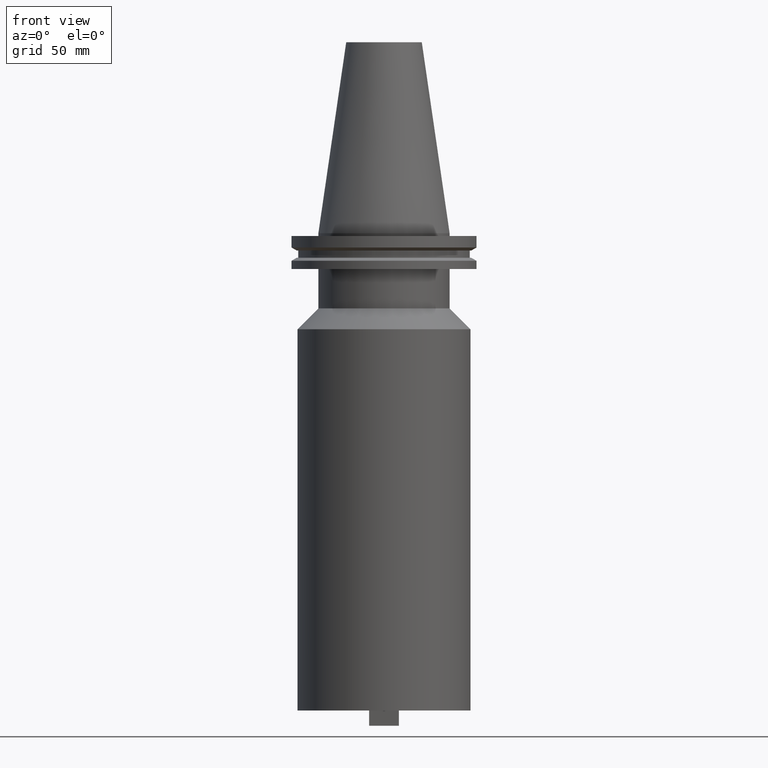
[diagram: clean part render]
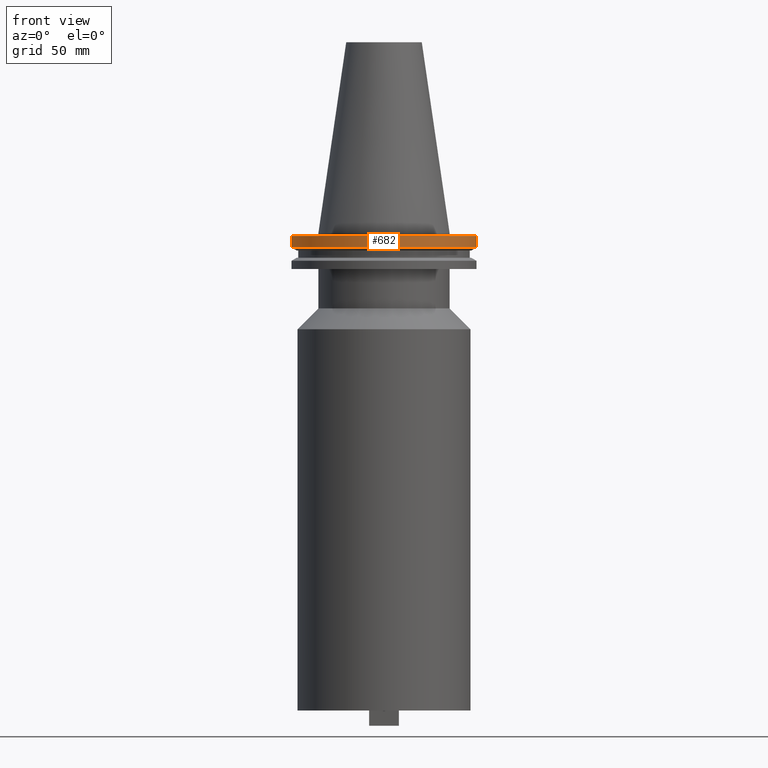
[diagram: same view with one face highlighted and labeled with its STEP entity id]
A machine part, front view. The second image highlights one B-rep face of the part: STEP entity #682.
In plain terms, the highlighted cylindrical surface (partial cylindrical patch) has radius 49.215 mm, axis along (-0, -0, 1).
Its self-contained STEP definition (entity closure, byte-faithful):
#2 = VERTEX_POINT ( 'NONE', #782 ) ;
#10 = CIRCLE ( 'NONE', #158, 49.21499999999999631 ) ;
#16 = EDGE_CURVE ( 'NONE', #539, #455, #609, .T. ) ;
#38 = EDGE_CURVE ( 'NONE', #2, #455, #10, .T. ) ;
#68 = AXIS2_PLACEMENT_3D ( 'NONE', #465, #313, #913 ) ;
#103 = LINE ( 'NONE', #938, #236 ) ;
#158 = AXIS2_PLACEMENT_3D ( 'NONE', #872, #1033, #368 ) ;
#177 = CARTESIAN_POINT ( 'NONE',  ( 49.21499999999999631, 0.000000000000000000, 101.5999999999999943 ) ) ;
#185 = CARTESIAN_POINT ( 'NONE',  ( -49.21500000000000341, 6.027099222003699404E-15, -7.602389855251287187 ) ) ;
#228 = DIRECTION ( 'NONE',  ( 1.000000000000000000, 0.000000000000000000, 0.000000000000000000 ) ) ;
#234 = CYLINDRICAL_SURFACE ( 'NONE', #1088, 49.21499999999999631 ) ;
#236 = VECTOR ( 'NONE', #1101, 1000.000000000000000 ) ;
#249 = ORIENTED_EDGE ( 'NONE', *, *, #16, .T. ) ;
#313 = DIRECTION ( 'NONE',  ( -0.000000000000000000, -0.000000000000000000, 1.000000000000000000 ) ) ;
#348 = EDGE_CURVE ( 'NONE', #1003, #2, #103, .T. ) ;
#364 = CARTESIAN_POINT ( 'NONE',  ( 49.21499999999999631, 0.000000000000000000, -1.499999999999987566 ) ) ;
#368 = DIRECTION ( 'NONE',  ( 1.000000000000000000, 0.000000000000000000, 0.000000000000000000 ) ) ;
#426 = VECTOR ( 'NONE', #968, 1000.000000000000000 ) ;
#455 = VERTEX_POINT ( 'NONE', #364 ) ;
#465 = CARTESIAN_POINT ( 'NONE',  ( 0.000000000000000000, 0.000000000000000000, -7.602389855251287187 ) ) ;
#477 = CARTESIAN_POINT ( 'NONE',  ( 0.000000000000000000, 0.000000000000000000, 101.5999999999999943 ) ) ;
#539 = VERTEX_POINT ( 'NONE', #583 ) ;
#554 = DIRECTION ( 'NONE',  ( -0.000000000000000000, -0.000000000000000000, 1.000000000000000000 ) ) ;
#583 = CARTESIAN_POINT ( 'NONE',  ( 49.21500000000000341, 0.000000000000000000, -7.602389855251287187 ) ) ;
#605 = ORIENTED_EDGE ( 'NONE', *, *, #749, .T. ) ;
#609 = LINE ( 'NONE', #177, #426 ) ;
#682 = ADVANCED_FACE ( 'NONE', ( #1074 ), #234, .T. ) ;
#749 = EDGE_CURVE ( 'NONE', #1003, #539, #1037, .T. ) ;
#782 = CARTESIAN_POINT ( 'NONE',  ( -49.21499999999999631, 6.027099222003697826E-15, -1.499999999999987566 ) ) ;
#825 = EDGE_LOOP ( 'NONE', ( #935, #605, #249, #856 ) ) ;
#856 = ORIENTED_EDGE ( 'NONE', *, *, #38, .F. ) ;
#872 = CARTESIAN_POINT ( 'NONE',  ( 0.000000000000000000, 0.000000000000000000, -1.499999999999987566 ) ) ;
#913 = DIRECTION ( 'NONE',  ( 1.000000000000000000, 0.000000000000000000, 0.000000000000000000 ) ) ;
#935 = ORIENTED_EDGE ( 'NONE', *, *, #348, .F. ) ;
#938 = CARTESIAN_POINT ( 'NONE',  ( -49.21499999999999631, 6.027099222003697826E-15, 101.5999999999999943 ) ) ;
#968 = DIRECTION ( 'NONE',  ( -0.000000000000000000, -0.000000000000000000, 1.000000000000000000 ) ) ;
#1003 = VERTEX_POINT ( 'NONE', #185 ) ;
#1033 = DIRECTION ( 'NONE',  ( -0.000000000000000000, -0.000000000000000000, 1.000000000000000000 ) ) ;
#1037 = CIRCLE ( 'NONE', #68, 49.21500000000000341 ) ;
#1074 = FACE_OUTER_BOUND ( 'NONE', #825, .T. ) ;
#1088 = AXIS2_PLACEMENT_3D ( 'NONE', #477, #554, #228 ) ;
#1101 = DIRECTION ( 'NONE',  ( -0.000000000000000000, -0.000000000000000000, 1.000000000000000000 ) ) ;